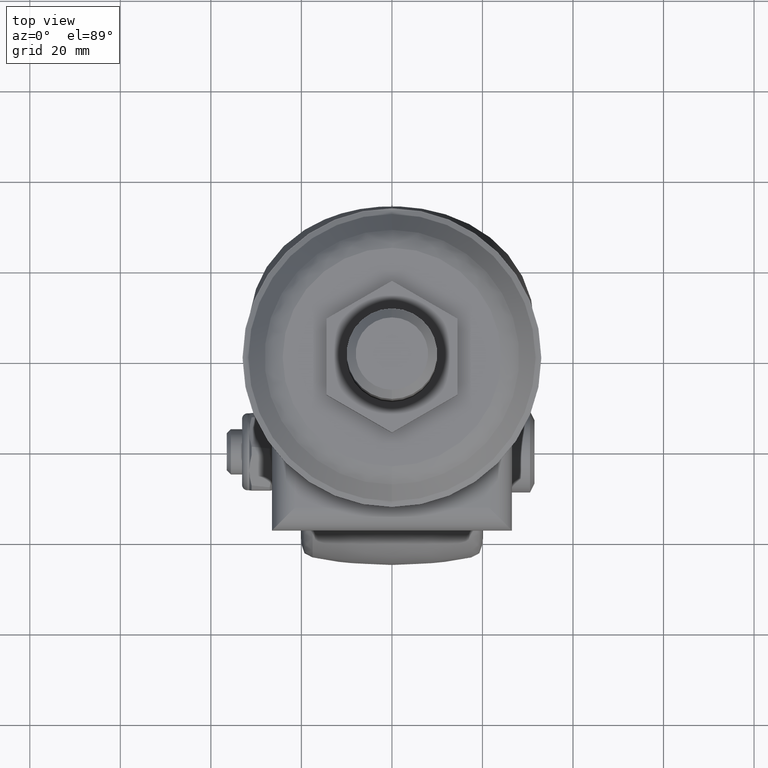
[diagram: clean part render]
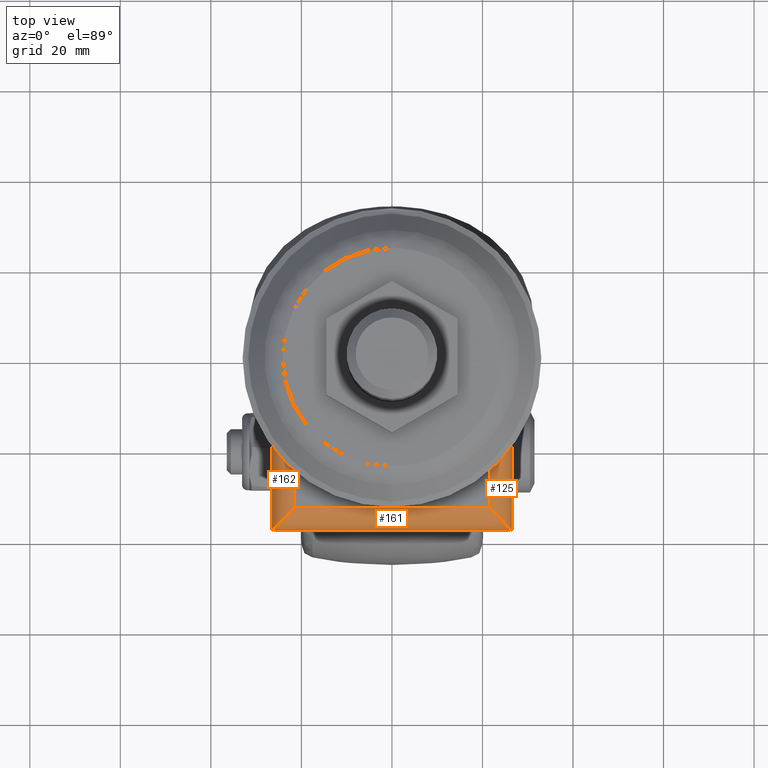
[diagram: same view with one multi-face feature highlighted, each face labeled with its STEP entity id]
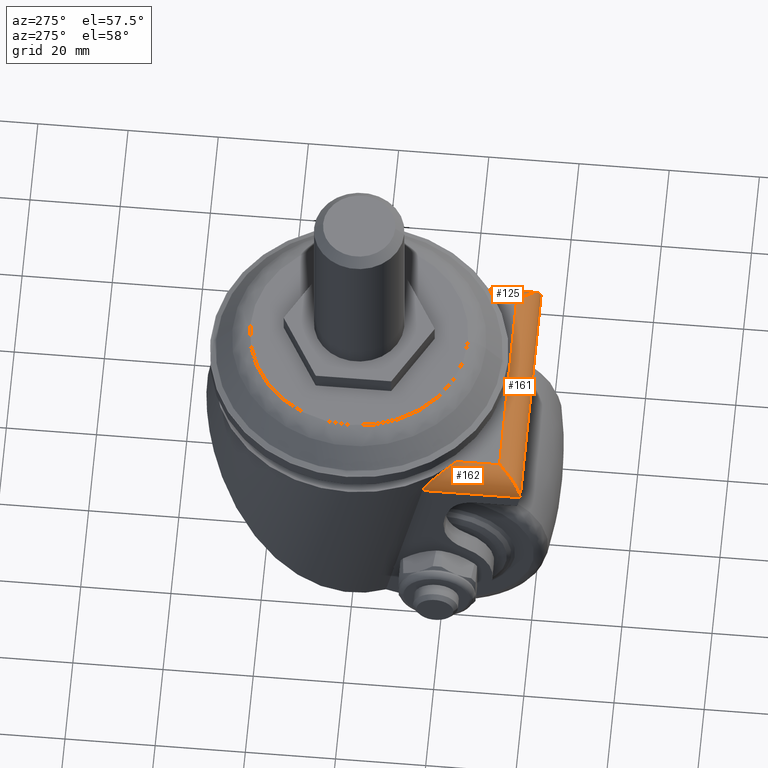
[diagram: same view with one multi-face feature highlighted, each face labeled with its STEP entity id]
A machine part, top view. The highlighted faces form ONE feature: a constant-radius fillet chain: 3 tangent blend faces with common blend radius 5 mm. The faces share edges in the B-rep.
A second angle (auxiliary view) of the same feature is appended — it is thin or edge-on in the first view.
Their STEP definitions:
[1] entity #125 (Cylinder):
#125=ADVANCED_FACE('',(#413),#412,.T.);
#412=CYLINDRICAL_SURFACE('',#2042,5.00000000000E+00);
#413=FACE_OUTER_BOUND('',#2043,.T.);
#2039=CARTESIAN_POINT('',(2.15000000000E+01,-2.10000000000E+01,4.20000000000E+01));
#2040=DIRECTION('',(-0.00000000000E+00,-0.00000000000E+00,1.00000000000E+00));
#2041=DIRECTION('',(1.00000000000E+00,-0.00000000000E+00,-0.00000000000E+00));
#2042=AXIS2_PLACEMENT_3D('',#2039,#2040,#2041);
#2043=EDGE_LOOP('',(#3723,#3724,#3725,#3726));
#3723=ORIENTED_EDGE('',*,*,#4455,.F.);
#3724=ORIENTED_EDGE('',*,*,#4456,.T.);
#3725=ORIENTED_EDGE('',*,*,#4457,.T.);
#3726=ORIENTED_EDGE('',*,*,#4458,.T.);
#4455=EDGE_CURVE('',#5173,#5174,#5175,.T.);
#4456=EDGE_CURVE('',#5173,#5181,#5182,.T.);
#4457=EDGE_CURVE('',#5181,#5188,#5189,.T.);
#4458=EDGE_CURVE('',#5188,#5174,#5195,.T.);
#5173=VERTEX_POINT('',#7546);
#5174=VERTEX_POINT('',#7547);
#5175=LINE('',#7548,#7549);
#5181=VERTEX_POINT('',#7551);
#5182=(BOUNDED_CURVE() B_SPLINE_CURVE(2,(#7552,#7553,#7554),.UNSPECIFIED.,.F.,.F.) B_SPLINE_CURVE_WITH_KNOTS((3,3),(1.57079632679E+00,3.14159265359E+00),.UNSPECIFIED.) CURVE() GEOMETRIC_REPRESENTATION_ITEM() RATIONAL_B_SPLINE_CURVE((1.00000000000E+00,7.07106781187E-01,1.00000000000E+00)) REPRESENTATION_ITEM('') );
#5188=VERTEX_POINT('',#7555);
#5189=LINE('',#7556,#7557);
#5195=(BOUNDED_CURVE() B_SPLINE_CURVE(3,(#7559,#7560,#7561,#7562,#7563,#7564,#7565,#7566,#7567,#7568,#7569,#7570,#7571,#7572,#7573,#7574,#7575,#7576),.UNSPECIFIED.,.F.,.F.) B_SPLINE_CURVE_WITH_KNOTS((4,2,2,2,2,2,2,2,4),(0.00000000000E+00,6.69203929331E-04,1.33840785866E-03,2.67681571732E-03,4.01522357599E-03,5.35363143465E-03,6.69203929331E-03,8.03044715197E-03,1.07072628693E-02),.UNSPECIFIED.) CURVE() GEOMETRIC_REPRESENTATION_ITEM() RATIONAL_B_SPLINE_CURVE((1.00000000000E+00,1.00000000000E+00,1.00000000000E+00,1.00000000000E+00,1.00000000000E+00,1.00000000000E+00,1.00000000000E+00,1.00000000000E+00,1.00000000000E+00,1.00000000000E+00,1.00000000000E+00,1.00000000000E+00,1.00000000000E+00,1.00000000000E+00,1.00000000000E+00,1.00000000000E+00,1.00000000000E+00,1.00000000000E+00)) REPRESENTATION_ITEM('') );
#7546=CARTESIAN_POINT('',(2.15000000000E+01,-1.60000000000E+01,3.30000000000E+01));
#7547=CARTESIAN_POINT('',(2.15000000000E+01,-1.60000000000E+01,2.34525597318E+01));
#7548=CARTESIAN_POINT('',(2.15000000000E+01,-1.60000000000E+01,3.30000000000E+01));
#7549=VECTOR('',#7550,9.54744026823E+00);
#7550=DIRECTION('',(0.00000000000E+00,0.00000000000E+00,-1.00000000000E+00));
#7551=CARTESIAN_POINT('',(2.65000000000E+01,-2.10000000000E+01,3.80000000000E+01));
#7552=CARTESIAN_POINT('',(2.15000000000E+01,-1.60000000000E+01,3.30000000000E+01));
#7553=CARTESIAN_POINT('',(2.65000000000E+01,-1.60000000000E+01,3.80000000000E+01));
#7554=CARTESIAN_POINT('',(2.65000000000E+01,-2.10000000000E+01,3.80000000000E+01));
#7555=CARTESIAN_POINT('',(2.65000000000E+01,-2.10000000000E+01,1.63761588389E+01));
#7556=CARTESIAN_POINT('',(2.65000000000E+01,-2.10000000000E+01,3.80000000000E+01));
#7557=VECTOR('',#7558,2.16238411611E+01);
#7558=DIRECTION('',(0.00000000000E+00,0.00000000000E+00,-1.00000000000E+00));
#7559=CARTESIAN_POINT('',(2.65000000000E+01,-2.10000000000E+01,1.63761588389E+01));
#7560=CARTESIAN_POINT('',(2.65000000000E+01,-2.07772232291E+01,1.64194622565E+01));
#7561=CARTESIAN_POINT('',(2.64852649917E+01,-2.05638493815E+01,1.64843466225E+01));
#7562=CARTESIAN_POINT('',(2.64319533935E+01,-2.01521025277E+01,1.66484457017E+01));
#7563=CARTESIAN_POINT('',(2.63928215200E+01,-1.99520328027E+01,1.67488332143E+01));
#7564=CARTESIAN_POINT('',(2.62482948803E+01,-1.93858604697E+01,1.70834979208E+01));
#7565=CARTESIAN_POINT('',(2.61176731741E+01,-1.90518094002E+01,1.73486471210E+01));
#7566=CARTESIAN_POINT('',(2.58073321042E+01,-1.84377271223E+01,1.79281528440E+01));
#7567=CARTESIAN_POINT('',(2.56312354059E+01,-1.81662310370E+01,1.82354604015E+01));
#7568=CARTESIAN_POINT('',(2.52468873700E+01,-1.76746146763E+01,1.88671928775E+01));
#7569=CARTESIAN_POINT('',(2.50380922954E+01,-1.74542746240E+01,1.91925356004E+01));
#7570=CARTESIAN_POINT('',(2.45880535391E+01,-1.70561198202E+01,1.98561562797E+01));
#7571=CARTESIAN_POINT('',(2.43491243958E+01,-1.68807431029E+01,2.01908751159E+01));
#7572=CARTESIAN_POINT('',(2.38486850435E+01,-1.65762611092E+01,2.08557095054E+01));
#7573=CARTESIAN_POINT('',(2.35863304604E+01,-1.64464743060E+01,2.11870916419E+01));
#7574=CARTESIAN_POINT('',(2.27597701272E+01,-1.61253242805E+01,2.21759877733E+01));
#7575=CARTESIAN_POINT('',(2.21506455446E+01,-1.60000000000E+01,2.28335486715E+01));
#7576=CARTESIAN_POINT('',(2.15000000000E+01,-1.60000000000E+01,2.34525597318E+01));
[2] entity #161 (Cylinder):
#161=ADVANCED_FACE('',(#776),#775,.T.);
#775=CYLINDRICAL_SURFACE('',#2255,5.00000000000E+00);
#776=FACE_OUTER_BOUND('',#2256,.T.);
#2252=CARTESIAN_POINT('',(3.70000000000E+01,-2.10000000000E+01,3.30000000000E+01));
#2253=DIRECTION('',(1.00000000000E+00,-0.00000000000E+00,-0.00000000000E+00));
#2254=DIRECTION('',(-0.00000000000E+00,-0.00000000000E+00,-1.00000000000E+00));
#2255=AXIS2_PLACEMENT_3D('',#2252,#2253,#2254);
#2256=EDGE_LOOP('',(#3903,#3904,#3905,#3906,#3907,#3908));
#3903=ORIENTED_EDGE('',*,*,#4456,.F.);
#3904=ORIENTED_EDGE('',*,*,#4550,.T.);
#3905=ORIENTED_EDGE('',*,*,#4551,.F.);
#3906=ORIENTED_EDGE('',*,*,#4480,.F.);
#3907=ORIENTED_EDGE('',*,*,#4544,.F.);
#3908=ORIENTED_EDGE('',*,*,#4462,.F.);
#4456=EDGE_CURVE('',#5173,#5181,#5182,.T.);
#4462=EDGE_CURVE('',#5181,#5222,#5223,.T.);
#4480=EDGE_CURVE('',#5340,#5347,#5348,.T.);
#4544=EDGE_CURVE('',#5222,#5340,#5766,.T.);
#4550=EDGE_CURVE('',#5173,#5802,#5803,.T.);
#4551=EDGE_CURVE('',#5347,#5802,#5809,.T.);
#5173=VERTEX_POINT('',#7546);
#5181=VERTEX_POINT('',#7551);
#5182=(BOUNDED_CURVE() B_SPLINE_CURVE(2,(#7552,#7553,#7554),.UNSPECIFIED.,.F.,.F.) B_SPLINE_CURVE_WITH_KNOTS((3,3),(1.57079632679E+00,3.14159265359E+00),.UNSPECIFIED.) CURVE() GEOMETRIC_REPRESENTATION_ITEM() RATIONAL_B_SPLINE_CURVE((1.00000000000E+00,7.07106781187E-01,1.00000000000E+00)) REPRESENTATION_ITEM('') );
#5222=VERTEX_POINT('',#7591);
#5223=CIRCLE('',#7595,5.00000000000E+00);
#5340=VERTEX_POINT('',#7668);
#5347=VERTEX_POINT('',#7672);
#5348=CIRCLE('',#7676,5.00000000000E+00);
#5766=LINE('',#8162,#8163);
#5802=VERTEX_POINT('',#8180);
#5803=LINE('',#8181,#8182);
#5809=(BOUNDED_CURVE() B_SPLINE_CURVE(2,(#8184,#8185,#8186),.UNSPECIFIED.,.F.,.F.) B_SPLINE_CURVE_WITH_KNOTS((3,3),(3.14159265359E+00,4.71238898038E+00),.UNSPECIFIED.) CURVE() GEOMETRIC_REPRESENTATION_ITEM() RATIONAL_B_SPLINE_CURVE((1.00000000000E+00,7.07106781187E-01,1.00000000000E+00)) REPRESENTATION_ITEM('') );
#7546=CARTESIAN_POINT('',(2.15000000000E+01,-1.60000000000E+01,3.30000000000E+01));
#7551=CARTESIAN_POINT('',(2.65000000000E+01,-2.10000000000E+01,3.80000000000E+01));
#7552=CARTESIAN_POINT('',(2.15000000000E+01,-1.60000000000E+01,3.30000000000E+01));
#7553=CARTESIAN_POINT('',(2.65000000000E+01,-1.60000000000E+01,3.80000000000E+01));
#7554=CARTESIAN_POINT('',(2.65000000000E+01,-2.10000000000E+01,3.80000000000E+01));
#7591=CARTESIAN_POINT('',(2.65000000000E+01,-2.21315419458E+01,3.78702785162E+01));
#7592=CARTESIAN_POINT('',(2.65000000000E+01,-2.10000000000E+01,3.30000000000E+01));
#7593=DIRECTION('',(1.00000000000E+00,0.00000000000E+00,-0.00000000000E+00));
#7594=DIRECTION('',(-0.00000000000E+00,-0.00000000000E+00,-1.00000000000E+00));
#7595=AXIS2_PLACEMENT_3D('',#7592,#7593,#7594);
#7668=CARTESIAN_POINT('',(-2.65000000000E+01,-2.21315419458E+01,3.78702785162E+01));
#7672=CARTESIAN_POINT('',(-2.65000000000E+01,-2.10000000000E+01,3.80000000000E+01));
#7673=CARTESIAN_POINT('',(-2.65000000000E+01,-2.10000000000E+01,3.30000000000E+01));
#7674=DIRECTION('',(-1.00000000000E+00,-0.00000000000E+00,-0.00000000000E+00));
#7675=DIRECTION('',(-0.00000000000E+00,-0.00000000000E+00,1.00000000000E+00));
#7676=AXIS2_PLACEMENT_3D('',#7673,#7674,#7675);
#8162=CARTESIAN_POINT('',(2.65000000000E+01,-2.21315419458E+01,3.78702785162E+01));
#8163=VECTOR('',#8164,5.30000000000E+01);
#8164=DIRECTION('',(-1.00000000000E+00,0.00000000000E+00,0.00000000000E+00));
#8180=CARTESIAN_POINT('',(-2.15000000000E+01,-1.60000000000E+01,3.30000000000E+01));
#8181=CARTESIAN_POINT('',(2.15000000000E+01,-1.60000000000E+01,3.30000000000E+01));
#8182=VECTOR('',#8183,4.30000000000E+01);
#8183=DIRECTION('',(-1.00000000000E+00,0.00000000000E+00,0.00000000000E+00));
#8184=CARTESIAN_POINT('',(-2.65000000000E+01,-2.10000000000E+01,3.80000000000E+01));
#8185=CARTESIAN_POINT('',(-2.65000000000E+01,-1.60000000000E+01,3.80000000000E+01));
#8186=CARTESIAN_POINT('',(-2.15000000000E+01,-1.60000000000E+01,3.30000000000E+01));
[3] entity #162 (Cylinder):
#162=ADVANCED_FACE('',(#786),#785,.T.);
#785=CYLINDRICAL_SURFACE('',#2260,5.00000000000E+00);
#786=FACE_OUTER_BOUND('',#2261,.T.);
#2257=CARTESIAN_POINT('',(-2.15000000000E+01,-2.10000000000E+01,4.20000000000E+01));
#2258=DIRECTION('',(-0.00000000000E+00,-0.00000000000E+00,1.00000000000E+00));
#2259=DIRECTION('',(1.00000000000E+00,-0.00000000000E+00,-0.00000000000E+00));
#2260=AXIS2_PLACEMENT_3D('',#2257,#2258,#2259);
#2261=EDGE_LOOP('',(#3909,#3910,#3911,#3912));
#3909=ORIENTED_EDGE('',*,*,#4481,.F.);
#3910=ORIENTED_EDGE('',*,*,#4551,.T.);
#3911=ORIENTED_EDGE('',*,*,#4552,.T.);
#3912=ORIENTED_EDGE('',*,*,#4553,.T.);
#4481=EDGE_CURVE('',#5347,#5277,#5354,.T.);
#4551=EDGE_CURVE('',#5347,#5802,#5809,.T.);
#4552=EDGE_CURVE('',#5802,#5815,#5816,.T.);
#4553=EDGE_CURVE('',#5815,#5277,#5822,.T.);
#5277=VERTEX_POINT('',#7628);
#5347=VERTEX_POINT('',#7672);
#5354=LINE('',#7677,#7678);
#5802=VERTEX_POINT('',#8180);
#5809=(BOUNDED_CURVE() B_SPLINE_CURVE(2,(#8184,#8185,#8186),.UNSPECIFIED.,.F.,.F.) B_SPLINE_CURVE_WITH_KNOTS((3,3),(3.14159265359E+00,4.71238898038E+00),.UNSPECIFIED.) CURVE() GEOMETRIC_REPRESENTATION_ITEM() RATIONAL_B_SPLINE_CURVE((1.00000000000E+00,7.07106781187E-01,1.00000000000E+00)) REPRESENTATION_ITEM('') );
#5815=VERTEX_POINT('',#8187);
#5816=LINE('',#8188,#8189);
#5822=(BOUNDED_CURVE() B_SPLINE_CURVE(3,(#8191,#8192,#8193,#8194,#8195,#8196,#8197,#8198,#8199,#8200,#8201,#8202,#8203,#8204,#8205,#8206,#8207,#8208,#8209,#8210),.UNSPECIFIED.,.F.,.F.) B_SPLINE_CURVE_WITH_KNOTS((4,2,2,2,2,2,2,2,2,4),(0.00000000000E+00,2.65846317605E-03,3.98769476407E-03,5.31692635210E-03,6.64615794012E-03,7.97538952815E-03,8.64000532216E-03,9.30462111617E-03,9.96923691019E-03,1.06338527042E-02),.UNSPECIFIED.) CURVE() GEOMETRIC_REPRESENTATION_ITEM() RATIONAL_B_SPLINE_CURVE((1.00000000000E+00,1.00000000000E+00,1.00000000000E+00,1.00000000000E+00,1.00000000000E+00,1.00000000000E+00,1.00000000000E+00,1.00000000000E+00,1.00000000000E+00,1.00000000000E+00,1.00000000000E+00,1.00000000000E+00,1.00000000000E+00,1.00000000000E+00,1.00000000000E+00,1.00000000000E+00,1.00000000000E+00,1.00000000000E+00,1.00000000000E+00,1.00000000000E+00)) REPRESENTATION_ITEM('') );
#7628=CARTESIAN_POINT('',(-2.65000000000E+01,-2.10000000000E+01,1.63761588389E+01));
#7672=CARTESIAN_POINT('',(-2.65000000000E+01,-2.10000000000E+01,3.80000000000E+01));
#7677=CARTESIAN_POINT('',(-2.65000000000E+01,-2.10000000000E+01,3.80000000000E+01));
#7678=VECTOR('',#7679,2.16238411611E+01);
#7679=DIRECTION('',(0.00000000000E+00,0.00000000000E+00,-1.00000000000E+00));
#8180=CARTESIAN_POINT('',(-2.15000000000E+01,-1.60000000000E+01,3.30000000000E+01));
#8184=CARTESIAN_POINT('',(-2.65000000000E+01,-2.10000000000E+01,3.80000000000E+01));
#8185=CARTESIAN_POINT('',(-2.65000000000E+01,-1.60000000000E+01,3.80000000000E+01));
#8186=CARTESIAN_POINT('',(-2.15000000000E+01,-1.60000000000E+01,3.30000000000E+01));
#8187=CARTESIAN_POINT('',(-2.15000000000E+01,-1.60000000000E+01,2.34525597318E+01));
#8188=CARTESIAN_POINT('',(-2.15000000000E+01,-1.60000000000E+01,3.30000000000E+01));
#8189=VECTOR('',#8190,9.54744026823E+00);
#8190=DIRECTION('',(0.00000000000E+00,0.00000000000E+00,-1.00000000000E+00));
#8191=CARTESIAN_POINT('',(-2.15000000000E+01,-1.60000000000E+01,2.34525597318E+01));
#8192=CARTESIAN_POINT('',(-2.21515542309E+01,-1.60000000000E+01,2.28326841657E+01));
#8193=CARTESIAN_POINT('',(-2.27484084185E+01,-1.61219977903E+01,2.21889009789E+01));
#8194=CARTESIAN_POINT('',(-2.35801666047E+01,-1.64435469737E+01,2.11947988284E+01));
#8195=CARTESIAN_POINT('',(-2.38476545869E+01,-1.65756155942E+01,2.08570890796E+01));
#8196=CARTESIAN_POINT('',(-2.43506150715E+01,-1.68816686457E+01,2.01888841300E+01));
#8197=CARTESIAN_POINT('',(-2.45875264532E+01,-1.70559242961E+01,1.98568021368E+01));
#8198=CARTESIAN_POINT('',(-2.50335422019E+01,-1.74499813713E+01,1.91993749917E+01));
#8199=CARTESIAN_POINT('',(-2.52426961784E+01,-1.76695904781E+01,1.88739541783E+01));
#8200=CARTESIAN_POINT('',(-2.56313943519E+01,-1.81661010998E+01,1.82353253725E+01));
#8201=CARTESIAN_POINT('',(-2.58081074582E+01,-1.84392505290E+01,1.79267079960E+01));
#8202=CARTESIAN_POINT('',(-2.60397484177E+01,-1.88976224804E+01,1.74941559928E+01));
#8203=CARTESIAN_POINT('',(-2.61118002963E+01,-1.90598506547E+01,1.73541675833E+01));
#8204=CARTESIAN_POINT('',(-2.62402247771E+01,-1.93990157659E+01,1.70928117458E+01));
#8205=CARTESIAN_POINT('',(-2.62967998740E+01,-1.95760331572E+01,1.69711470941E+01));
#8206=CARTESIAN_POINT('',(-2.63919905179E+01,-1.99486202525E+01,1.67507903617E+01));
#8207=CARTESIAN_POINT('',(-2.64306632104E+01,-2.01441309879E+01,1.66520252894E+01));
#8208=CARTESIAN_POINT('',(-2.64850027085E+01,-2.05598869965E+01,1.64855346163E+01));
#8209=CARTESIAN_POINT('',(-2.65000000000E+01,-2.07771474608E+01,1.64194769844E+01));
#8210=CARTESIAN_POINT('',(-2.65000000000E+01,-2.10000000000E+01,1.63761588389E+01));